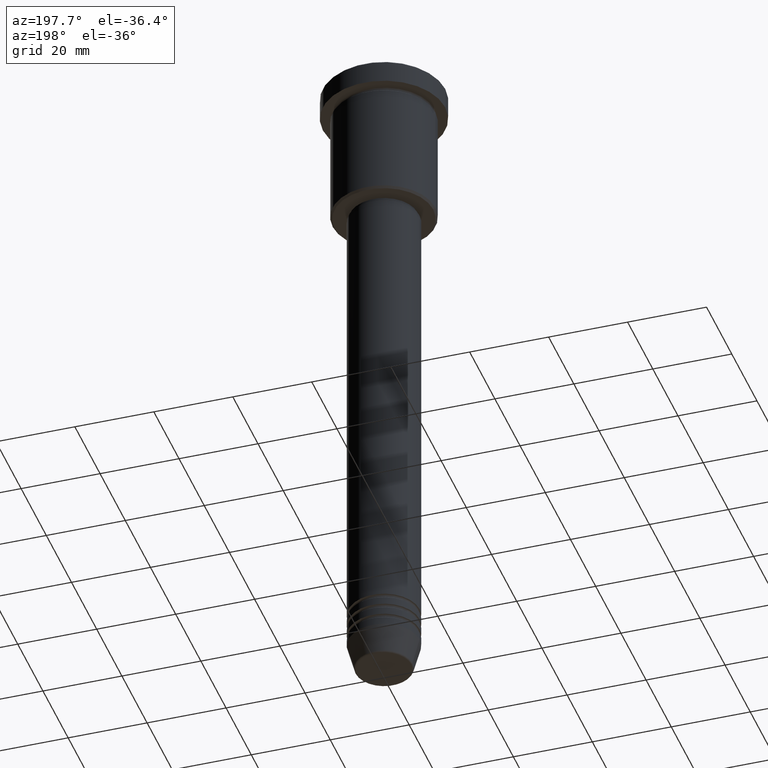
[diagram: clean part render]
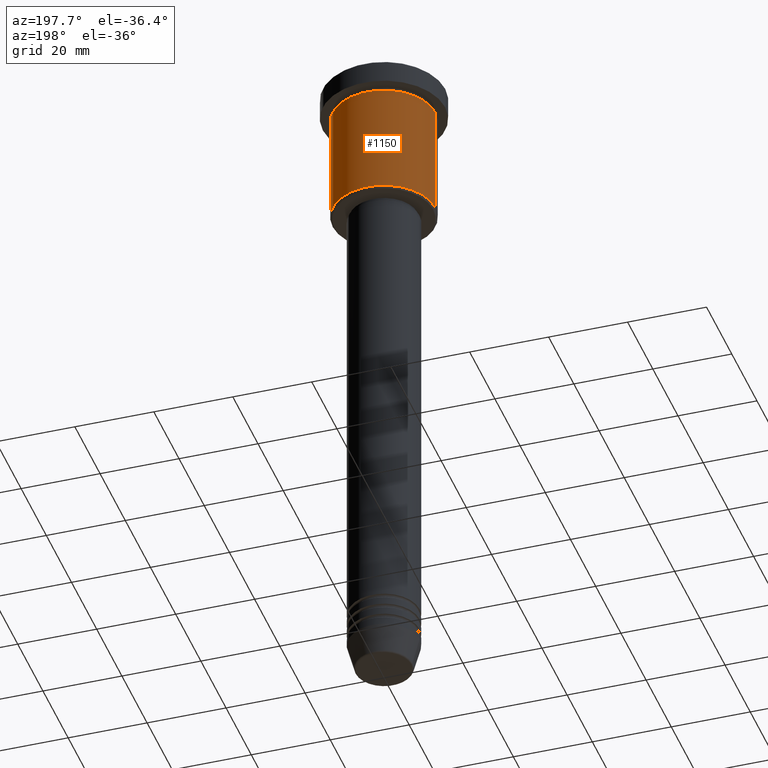
[diagram: same view with one face highlighted and labeled with its STEP entity id]
A machine part, auxiliary view. The second image highlights one B-rep face of the part: STEP entity #1150.
In plain terms, the highlighted cylindrical surface (partial cylindrical patch) has radius 13 mm, axis along (-0, -0, 1).
Its self-contained STEP definition (entity closure, byte-faithful):
#54 = VERTEX_POINT ( 'NONE', #305 ) ;
#71 = VECTOR ( 'NONE', #415, 1000.000000000000000 ) ;
#148 = DIRECTION ( 'NONE',  ( 1.000000000000000000, 0.000000000000000000, 0.000000000000000000 ) ) ;
#209 = AXIS2_PLACEMENT_3D ( 'NONE', #538, #339, #983 ) ;
#234 = CARTESIAN_POINT ( 'NONE',  ( -13.00000000000000000, 1.592040838891559095E-15, -6.999999999999995559 ) ) ;
#239 = CARTESIAN_POINT ( 'NONE',  ( -13.00000000000000000, 1.592040838891559095E-15, 0.000000000000000000 ) ) ;
#240 = AXIS2_PLACEMENT_3D ( 'NONE', #272, #432, #148 ) ;
#272 = CARTESIAN_POINT ( 'NONE',  ( 0.000000000000000000, 0.000000000000000000, 0.000000000000000000 ) ) ;
#305 = CARTESIAN_POINT ( 'NONE',  ( -13.00000000000000000, 1.592040838891559095E-15, -35.49999999999997868 ) ) ;
#306 = CIRCLE ( 'NONE', #209, 13.00000000000000000 ) ;
#314 = DIRECTION ( 'NONE',  ( -0.000000000000000000, -0.000000000000000000, 1.000000000000000000 ) ) ;
#322 = CARTESIAN_POINT ( 'NONE',  ( 13.00000000000000000, 0.000000000000000000, 0.000000000000000000 ) ) ;
#339 = DIRECTION ( 'NONE',  ( -0.000000000000000000, -0.000000000000000000, 1.000000000000000000 ) ) ;
#371 = CARTESIAN_POINT ( 'NONE',  ( 13.00000000000000000, 0.000000000000000000, -6.999999999999995559 ) ) ;
#415 = DIRECTION ( 'NONE',  ( -0.000000000000000000, -0.000000000000000000, 1.000000000000000000 ) ) ;
#432 = DIRECTION ( 'NONE',  ( -0.000000000000000000, -0.000000000000000000, 1.000000000000000000 ) ) ;
#459 = EDGE_CURVE ( 'NONE', #54, #905, #957, .T. ) ;
#507 = LINE ( 'NONE', #322, #866 ) ;
#528 = EDGE_CURVE ( 'NONE', #785, #905, #1141, .T. ) ;
#538 = CARTESIAN_POINT ( 'NONE',  ( 0.000000000000000000, 0.000000000000000000, -35.49999999999997868 ) ) ;
#585 = DIRECTION ( 'NONE',  ( 1.000000000000000000, 0.000000000000000000, 0.000000000000000000 ) ) ;
#611 = FACE_OUTER_BOUND ( 'NONE', #887, .T. ) ;
#683 = CARTESIAN_POINT ( 'NONE',  ( 13.00000000000000000, 0.000000000000000000, -35.49999999999997868 ) ) ;
#684 = ORIENTED_EDGE ( 'NONE', *, *, #459, .T. ) ;
#710 = ORIENTED_EDGE ( 'NONE', *, *, #1052, .T. ) ;
#721 = CYLINDRICAL_SURFACE ( 'NONE', #240, 13.00000000000000000 ) ;
#785 = VERTEX_POINT ( 'NONE', #371 ) ;
#866 = VECTOR ( 'NONE', #314, 1000.000000000000000 ) ;
#876 = ORIENTED_EDGE ( 'NONE', *, *, #904, .F. ) ;
#878 = VERTEX_POINT ( 'NONE', #683 ) ;
#887 = EDGE_LOOP ( 'NONE', ( #710, #684, #1066, #876 ) ) ;
#904 = EDGE_CURVE ( 'NONE', #878, #785, #507, .T. ) ;
#905 = VERTEX_POINT ( 'NONE', #234 ) ;
#957 = LINE ( 'NONE', #239, #71 ) ;
#961 = DIRECTION ( 'NONE',  ( -0.000000000000000000, -0.000000000000000000, 1.000000000000000000 ) ) ;
#983 = DIRECTION ( 'NONE',  ( -1.000000000000000000, 0.000000000000000000, 0.000000000000000000 ) ) ;
#1038 = CARTESIAN_POINT ( 'NONE',  ( 0.000000000000000000, 0.000000000000000000, -6.999999999999995559 ) ) ;
#1052 = EDGE_CURVE ( 'NONE', #878, #54, #306, .T. ) ;
#1066 = ORIENTED_EDGE ( 'NONE', *, *, #528, .F. ) ;
#1141 = CIRCLE ( 'NONE', #1158, 13.00000000000000000 ) ;
#1150 = ADVANCED_FACE ( 'NONE', ( #611 ), #721, .T. ) ;
#1158 = AXIS2_PLACEMENT_3D ( 'NONE', #1038, #961, #585 ) ;